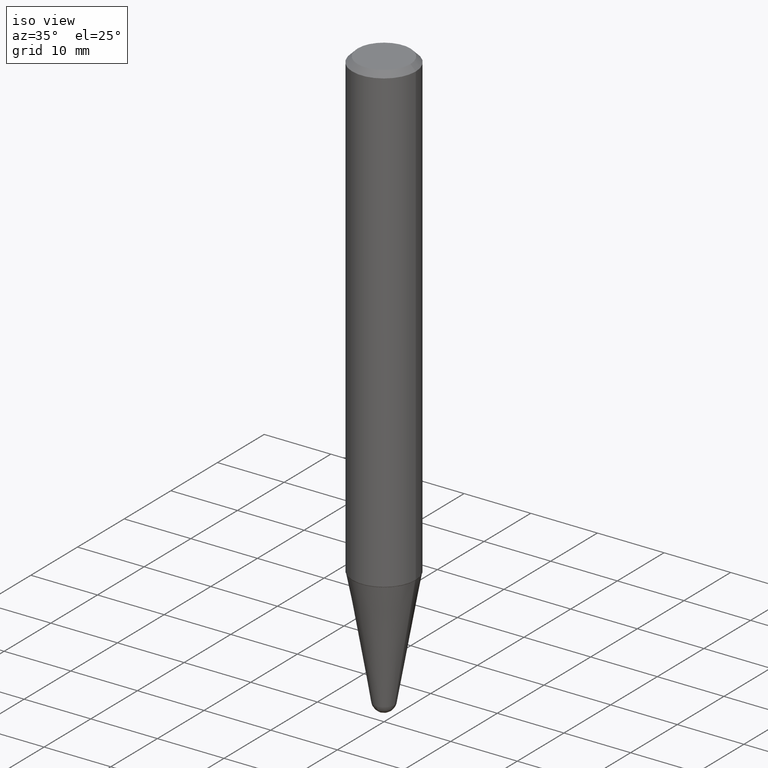
[diagram: clean part render]
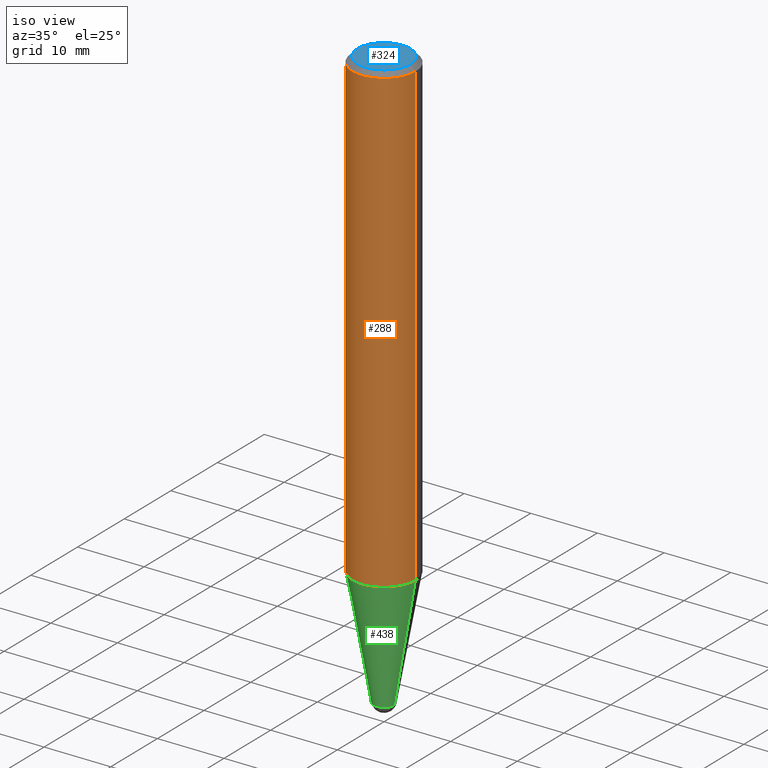
[diagram: same view with three faces highlighted in distinct colors, each labeled with its STEP entity id]
A machine part, iso view with three faces highlighted in distinct colors.
Their STEP definitions:

[orange] entity #288 — the highlighted cylindrical surface (partial cylindrical patch) has radius 4.7625 mm, axis along (-0, 0, 1).
#1 = VERTEX_POINT ( 'NONE', #363 ) ;
#11 = CYLINDRICAL_SURFACE ( 'NONE', #15, 0.1875000000000001943 ) ;
#15 = AXIS2_PLACEMENT_3D ( 'NONE', #267, #81, #189 ) ;
#26 = VERTEX_POINT ( 'NONE', #344 ) ;
#31 = CARTESIAN_POINT ( 'NONE',  ( -0.1874999999999999722, -3.515420659890972439E-15, -0.03125000000000003469 ) ) ;
#33 = CARTESIAN_POINT ( 'NONE',  ( -0.1875000000000001943, 1.332267629550191398E-15, 5.931196827434205055E-16 ) ) ;
#43 = DIRECTION ( 'NONE',  ( 1.000000000000000000, -6.982962677686266711E-15, 0.000000000000000000 ) ) ;
#81 = DIRECTION ( 'NONE',  ( -2.445468806185136597E-29, 3.491481338843145583E-15, 1.000000000000000000 ) ) ;
#98 = DIRECTION ( 'NONE',  ( -2.445468806185136597E-29, 3.491481338843145583E-15, 1.000000000000000000 ) ) ;
#109 = DIRECTION ( 'NONE',  ( -2.445468806185136877E-29, 3.491481338843145188E-15, 1.000000000000000000 ) ) ;
#111 = CIRCLE ( 'NONE', #173, 0.1875000000000003608 ) ;
#135 = ORIENTED_EDGE ( 'NONE', *, *, #425, .T. ) ;
#137 = ORIENTED_EDGE ( 'NONE', *, *, #184, .T. ) ;
#156 = CARTESIAN_POINT ( 'NONE',  ( 7.642090019328561499E-31, -1.091087918388484350E-16, -0.03125000000000003469 ) ) ;
#160 = FACE_OUTER_BOUND ( 'NONE', #321, .T. ) ;
#166 = EDGE_CURVE ( 'NONE', #26, #402, #182, .T. ) ;
#173 = AXIS2_PLACEMENT_3D ( 'NONE', #461, #98, #356 ) ;
#179 = DIRECTION ( 'NONE',  ( -2.445468806185136877E-29, 3.491481338843145188E-15, 1.000000000000000000 ) ) ;
#181 = VECTOR ( 'NONE', #179, 39.37007874015748143 ) ;
#182 = LINE ( 'NONE', #33, #181 ) ;
#184 = EDGE_CURVE ( 'NONE', #1, #249, #371, .T. ) ;
#188 = CARTESIAN_POINT ( 'NONE',  ( 0.1875000000000001943, -1.309305502066174022E-15, 5.931196827434387479E-16 ) ) ;
#189 = DIRECTION ( 'NONE',  ( 1.000000000000000000, -6.982962677686265922E-15, 4.852736867747361162E-29 ) ) ;
#243 = CIRCLE ( 'NONE', #283, 0.1874999999999999722 ) ;
#249 = VERTEX_POINT ( 'NONE', #265 ) ;
#265 = CARTESIAN_POINT ( 'NONE',  ( 0.1874999999999999722, -1.418414293905023123E-15, -0.03125000000000003469 ) ) ;
#267 = CARTESIAN_POINT ( 'NONE',  ( -1.450455682483482035E-44, 2.070866303999251778E-30, 5.931196827434296760E-16 ) ) ;
#280 = EDGE_CURVE ( 'NONE', #402, #249, #243, .T. ) ;
#283 = AXIS2_PLACEMENT_3D ( 'NONE', #156, #452, #43 ) ;
#288 = ADVANCED_FACE ( 'NONE', ( #160 ), #11, .T. ) ;
#307 = ORIENTED_EDGE ( 'NONE', *, *, #166, .F. ) ;
#321 = EDGE_LOOP ( 'NONE', ( #307, #135, #137, #437 ) ) ;
#344 = CARTESIAN_POINT ( 'NONE',  ( -0.1875000000000003608, -8.254000157493289148E-15, -2.745616217504904810 ) ) ;
#356 = DIRECTION ( 'NONE',  ( 1.000000000000000000, -6.982962677686269866E-15, 0.000000000000000000 ) ) ;
#363 = CARTESIAN_POINT ( 'NONE',  ( 0.1875000000000003608, -1.089557328910965674E-14, -2.745616217504904810 ) ) ;
#371 = LINE ( 'NONE', #188, #383 ) ;
#383 = VECTOR ( 'NONE', #109, 39.37007874015748143 ) ;
#402 = VERTEX_POINT ( 'NONE', #31 ) ;
#425 = EDGE_CURVE ( 'NONE', #26, #1, #111, .T. ) ;
#437 = ORIENTED_EDGE ( 'NONE', *, *, #280, .F. ) ;
#452 = DIRECTION ( 'NONE',  ( -2.445468806185136597E-29, 3.491481338843145583E-15, 1.000000000000000000 ) ) ;
#461 = CARTESIAN_POINT ( 'NONE',  ( 6.714318813664270048E-29, -9.586267787043478574E-15, -2.745616217504904810 ) ) ;

[blue] entity #324 — the highlighted planar face has unit normal (0, -0, -1).
#13 = PLANE ( 'NONE',  #158 ) ;
#25 = ORIENTED_EDGE ( 'NONE', *, *, #155, .T. ) ;
#57 = CARTESIAN_POINT ( 'NONE',  ( 1.617471908777117797E-44, -2.309321211260124338E-30, -6.614158825850365029E-16 ) ) ;
#76 = DIRECTION ( 'NONE',  ( -2.445468806185136597E-29, 3.491481338843145583E-15, 1.000000000000000000 ) ) ;
#122 = CARTESIAN_POINT ( 'NONE',  ( -0.1562500000000004718, 1.145642314307903527E-15, -6.614158825850442929E-16 ) ) ;
#127 = AXIS2_PLACEMENT_3D ( 'NONE', #57, #207, #271 ) ;
#155 = EDGE_CURVE ( 'NONE', #250, #362, #157, .T. ) ;
#157 = CIRCLE ( 'NONE', #341, 0.1562500000000004718 ) ;
#158 = AXIS2_PLACEMENT_3D ( 'NONE', #334, #443, #450 ) ;
#183 = DIRECTION ( 'NONE',  ( 1.000000000000000000, -6.982962677686266711E-15, 4.891558762689330142E-29 ) ) ;
#204 = EDGE_LOOP ( 'NONE', ( #25, #391 ) ) ;
#207 = DIRECTION ( 'NONE',  ( -2.445468806185136597E-29, 3.491481338843145583E-15, 1.000000000000000000 ) ) ;
#250 = VERTEX_POINT ( 'NONE', #122 ) ;
#257 = CARTESIAN_POINT ( 'NONE',  ( 1.617471908777117797E-44, -2.309321211260124338E-30, -6.614158825850365029E-16 ) ) ;
#271 = DIRECTION ( 'NONE',  ( 1.000000000000000000, -6.982962677686266711E-15, 4.891558762689330142E-29 ) ) ;
#293 = CIRCLE ( 'NONE', #127, 0.1562500000000004718 ) ;
#305 = FACE_OUTER_BOUND ( 'NONE', #204, .T. ) ;
#324 = ADVANCED_FACE ( 'NONE', ( #305 ), #13, .F. ) ;
#334 = CARTESIAN_POINT ( 'NONE',  ( 8.087359543885587740E-45, -1.154660605630061818E-30, -3.307079412925182022E-16 ) ) ;
#341 = AXIS2_PLACEMENT_3D ( 'NONE', #257, #76, #183 ) ;
#351 = CARTESIAN_POINT ( 'NONE',  ( 0.1562500000000004718, -1.233702489286409101E-15, -6.614158825850284171E-16 ) ) ;
#362 = VERTEX_POINT ( 'NONE', #351 ) ;
#391 = ORIENTED_EDGE ( 'NONE', *, *, #458, .T. ) ;
#443 = DIRECTION ( 'NONE',  ( 2.438088387897960049E-29, -3.491481338843145188E-15, -1.000000000000000000 ) ) ;
#450 = DIRECTION ( 'NONE',  ( -1.000000000000000000, 6.982962677686265922E-15, -4.876176775795935793E-29 ) ) ;
#458 = EDGE_CURVE ( 'NONE', #362, #250, #293, .T. ) ;

[green] entity #438 — the highlighted conical surface has half-angle 10 deg.
#21 = FACE_OUTER_BOUND ( 'NONE', #399, .T. ) ;
#34 = CIRCLE ( 'NONE', #298, 0.06155048456326336903 ) ;
#36 = EDGE_CURVE ( 'NONE', #211, #214, #266, .T. ) ;
#42 = AXIS2_PLACEMENT_3D ( 'NONE', #302, #387, #414 ) ;
#62 = VERTEX_POINT ( 'NONE', #168 ) ;
#64 = ORIENTED_EDGE ( 'NONE', *, *, #36, .F. ) ;
#71 = EDGE_CURVE ( 'NONE', #214, #349, #431, .T. ) ;
#77 = CARTESIAN_POINT ( 'NONE',  ( 8.432839721369867924E-29, -1.203986018801382488E-14, -3.448353011104182908 ) ) ;
#78 = VECTOR ( 'NONE', #115, 39.37007874015748854 ) ;
#91 = CONICAL_SURFACE ( 'NONE', #42, 0.06155048456326336903, 0.1745329251994330311 ) ;
#96 = CIRCLE ( 'NONE', #142, 0.06155048456326336903 ) ;
#114 = EDGE_CURVE ( 'NONE', #62, #434, #96, .T. ) ;
#115 = DIRECTION ( 'NONE',  ( 0.1736481776669304145, 2.225859148293765253E-15, 0.9848077530122080203 ) ) ;
#124 = CARTESIAN_POINT ( 'NONE',  ( 0.1846889624799291363, -1.089124981379659235E-14, -2.750000000000000000 ) ) ;
#131 = ORIENTED_EDGE ( 'NONE', *, *, #376, .T. ) ;
#142 = AXIS2_PLACEMENT_3D ( 'NONE', #366, #255, #149 ) ;
#146 = CARTESIAN_POINT ( 'NONE',  ( -0.1846889624799291363, -8.289279675166815415E-15, -2.750000000000000000 ) ) ;
#149 = DIRECTION ( 'NONE',  ( 1.000000000000000000, -6.982962677686260400E-15, 0.000000000000000000 ) ) ;
#168 = CARTESIAN_POINT ( 'NONE',  ( -4.373424968893228711E-16, -0.06155048456327506801, -3.448353011104182908 ) ) ;
#185 = CARTESIAN_POINT ( 'NONE',  ( -0.06155048456326336903, -9.945898683145615595E-15, -3.448353011104182908 ) ) ;
#211 = VERTEX_POINT ( 'NONE', #185 ) ;
#214 = VERTEX_POINT ( 'NONE', #146 ) ;
#231 = CARTESIAN_POINT ( 'NONE',  ( 0.06155048456326336903, -1.168045736915459686E-14, -3.448353011104182908 ) ) ;
#255 = DIRECTION ( 'NONE',  ( -2.445468806185136597E-29, 3.491481338843145583E-15, 1.000000000000000000 ) ) ;
#266 = LINE ( 'NONE', #412, #423 ) ;
#276 = ORIENTED_EDGE ( 'NONE', *, *, #71, .F. ) ;
#282 = DIRECTION ( 'NONE',  ( 1.000000000000000000, -6.982962677686268288E-15, 0.000000000000000000 ) ) ;
#287 = CARTESIAN_POINT ( 'NONE',  ( 6.725039217009124520E-29, -9.601573681818649859E-15, -2.750000000000000000 ) ) ;
#298 = AXIS2_PLACEMENT_3D ( 'NONE', #77, #375, #386 ) ;
#302 = CARTESIAN_POINT ( 'NONE',  ( 8.432839721369867924E-29, -1.203986018801382488E-14, -3.448353011104182908 ) ) ;
#316 = ORIENTED_EDGE ( 'NONE', *, *, #114, .T. ) ;
#317 = ORIENTED_EDGE ( 'NONE', *, *, #325, .T. ) ;
#325 = EDGE_CURVE ( 'NONE', #211, #62, #34, .T. ) ;
#337 = LINE ( 'NONE', #342, #78 ) ;
#342 = CARTESIAN_POINT ( 'NONE',  ( 0.06155048456326336903, -1.246966492451259664E-14, -3.448353011104182908 ) ) ;
#349 = VERTEX_POINT ( 'NONE', #124 ) ;
#366 = CARTESIAN_POINT ( 'NONE',  ( 8.432839721369867924E-29, -1.203986018801382488E-14, -3.448353011104182908 ) ) ;
#375 = DIRECTION ( 'NONE',  ( -2.445468806185136597E-29, 3.491481338843145583E-15, 1.000000000000000000 ) ) ;
#376 = EDGE_CURVE ( 'NONE', #434, #349, #337, .T. ) ;
#386 = DIRECTION ( 'NONE',  ( 1.000000000000000000, -6.982962677686260400E-15, 0.000000000000000000 ) ) ;
#387 = DIRECTION ( 'NONE',  ( -2.445468806185136597E-29, 3.491481338843145583E-15, 1.000000000000000000 ) ) ;
#399 = EDGE_LOOP ( 'NONE', ( #64, #317, #316, #131, #276 ) ) ;
#406 = AXIS2_PLACEMENT_3D ( 'NONE', #287, #442, #282 ) ;
#412 = CARTESIAN_POINT ( 'NONE',  ( -0.06155048456326336903, -1.160251769112441577E-14, -3.448353011104182908 ) ) ;
#414 = DIRECTION ( 'NONE',  ( 1.000000000000000000, -6.982962677686260400E-15, 0.000000000000000000 ) ) ;
#423 = VECTOR ( 'NONE', #454, 39.37007874015748854 ) ;
#431 = CIRCLE ( 'NONE', #406, 0.1846889624799291363 ) ;
#434 = VERTEX_POINT ( 'NONE', #231 ) ;
#438 = ADVANCED_FACE ( 'NONE', ( #21 ), #91, .T. ) ;
#442 = DIRECTION ( 'NONE',  ( -2.445468806185136597E-29, 3.491481338843145583E-15, 1.000000000000000000 ) ) ;
#454 = DIRECTION ( 'NONE',  ( -0.1736481776669304145, 4.672282404182340767E-15, 0.9848077530122080203 ) ) ;